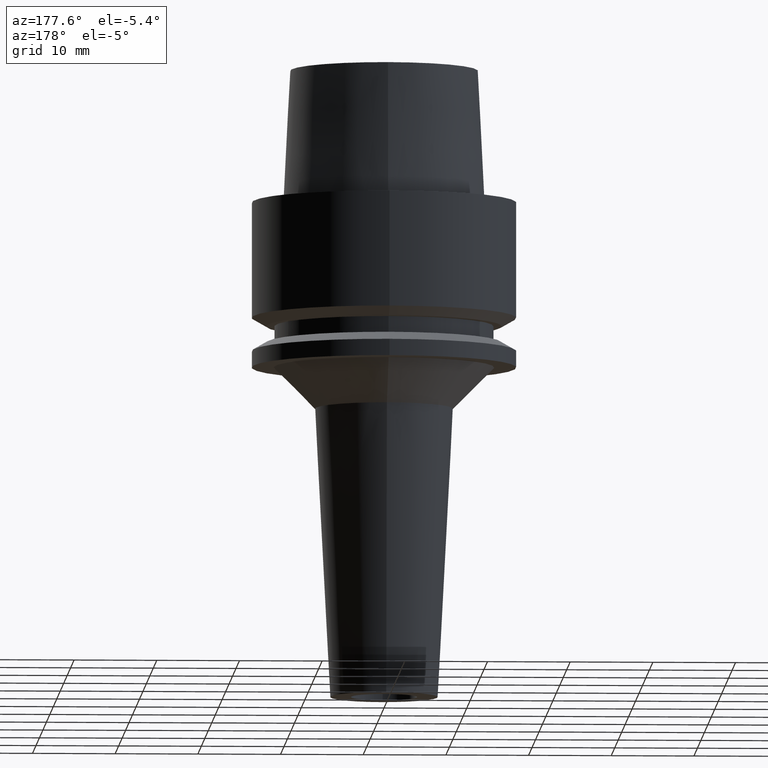
[diagram: clean part render]
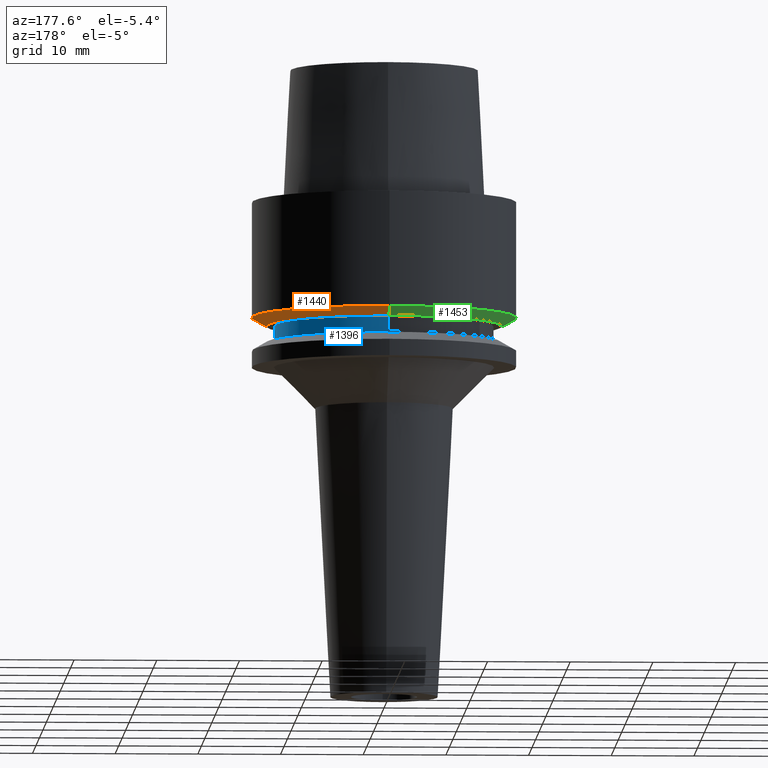
[diagram: same view with three faces highlighted in distinct colors, each labeled with its STEP entity id]
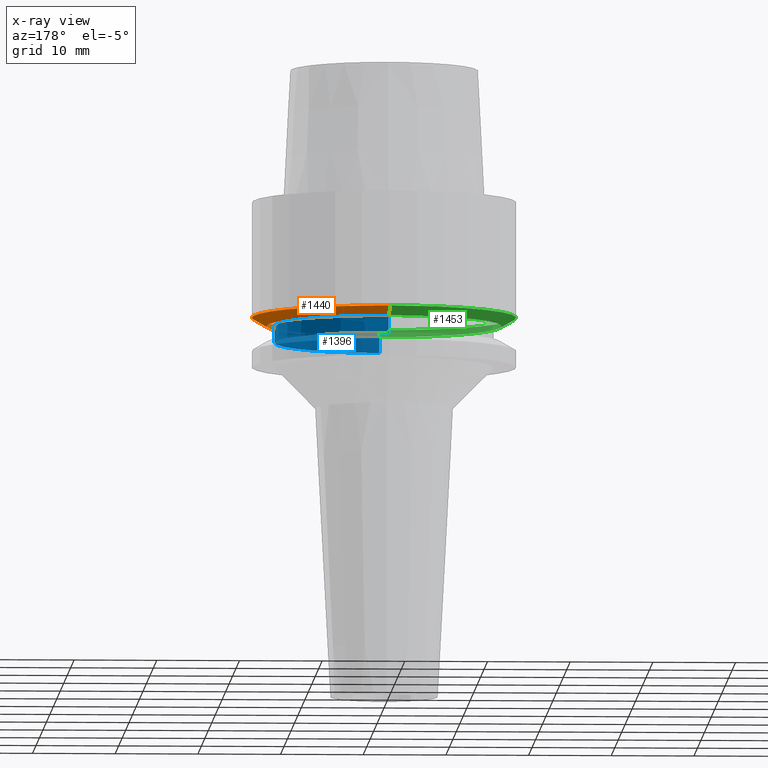
[diagram: x-ray of the same camera — body ghosted, the three highlighted faces saturated]
A machine part, auxiliary view with three faces highlighted in distinct colors.
The next image is the same camera in x-ray (body ghosted, the three faces saturated) — at least one of them is partly hidden behind the body in this view.
Their STEP definitions:

[orange] entity #1440 — the highlighted conical surface has half-angle 60 deg.
#612=CARTESIAN_POINT('',(0.E0,1.047199923065E-14,-1.5E1));
#613=DIRECTION('',(0.E0,0.E0,1.E0));
#614=DIRECTION('',(0.E0,-1.E0,0.E0));
#615=AXIS2_PLACEMENT_3D('',#612,#613,#614);
#644=DIRECTION('',(0.E0,-8.660254037848E-1,-4.999999999994E-1));
#645=VECTOR('',#644,2.041451884325E0);
#646=CARTESIAN_POINT('',(0.E0,1.6E1,-1.397927405784E1));
#647=LINE('',#646,#645);
#651=CARTESIAN_POINT('',(0.E0,1.047199923065E-14,-1.397927405784E1));
#652=DIRECTION('',(0.E0,0.E0,1.E0));
#653=DIRECTION('',(0.E0,-1.E0,0.E0));
#654=AXIS2_PLACEMENT_3D('',#651,#652,#653);
#667=DIRECTION('',(0.E0,8.660254037848E-1,-4.999999999994E-1));
#668=VECTOR('',#667,2.041451884325E0);
#669=CARTESIAN_POINT('',(0.E0,-1.6E1,-1.397927405784E1));
#670=LINE('',#669,#668);
#820=CARTESIAN_POINT('',(0.E0,-1.423205080757E1,-1.5E1));
#821=CARTESIAN_POINT('',(0.E0,1.423205080757E1,-1.5E1));
#822=VERTEX_POINT('',#820);
#823=VERTEX_POINT('',#821);
#824=CARTESIAN_POINT('',(0.E0,1.6E1,-1.397927405784E1));
#825=VERTEX_POINT('',#824);
#826=CARTESIAN_POINT('',(0.E0,-1.6E1,-1.397927405784E1));
#827=VERTEX_POINT('',#826);
#1426=CARTESIAN_POINT('',(0.E0,1.047199923065E-14,-1.448963702892E1));
#1427=DIRECTION('',(0.E0,0.E0,1.E0));
#1428=DIRECTION('',(0.E0,1.E0,0.E0));
#1429=AXIS2_PLACEMENT_3D('',#1426,#1427,#1428);
#1430=CONICAL_SURFACE('',#1429,1.511602540378E1,6.E1);
#1432=ORIENTED_EDGE('',*,*,#1431,.T.);
#1433=ORIENTED_EDGE('',*,*,#1415,.F.);
#1435=ORIENTED_EDGE('',*,*,#1434,.F.);
#1437=ORIENTED_EDGE('',*,*,#1436,.T.);
#1438=EDGE_LOOP('',(#1432,#1433,#1435,#1437));
#1439=FACE_OUTER_BOUND('',#1438,.F.);
#616=CIRCLE('',#615,1.423205080757E1);
#655=CIRCLE('',#654,1.6E1);
#1415=EDGE_CURVE('',#822,#823,#616,.T.);
#1431=EDGE_CURVE('',#825,#823,#647,.T.);
#1434=EDGE_CURVE('',#827,#822,#670,.T.);
#1436=EDGE_CURVE('',#827,#825,#655,.T.);
#1440=ADVANCED_FACE('',(#1439),#1430,.T.);

[blue] entity #1396 — the highlighted cylindrical surface (partial cylindrical patch) has radius 13.25 mm, axis along (0, 0, -1).
#582=CARTESIAN_POINT('',(0.E0,1.467126865379E-14,-1.7E1));
#583=DIRECTION('',(0.E0,0.E0,1.E0));
#584=DIRECTION('',(0.E0,-1.E0,0.E0));
#585=AXIS2_PLACEMENT_3D('',#582,#583,#584);
#598=DIRECTION('',(0.E0,0.E0,-1.E0));
#599=VECTOR('',#598,2.E0);
#600=CARTESIAN_POINT('',(0.E0,1.325E1,-1.5E1));
#601=LINE('',#600,#599);
#605=DIRECTION('',(0.E0,0.E0,-1.E0));
#606=VECTOR('',#605,2.E0);
#607=CARTESIAN_POINT('',(0.E0,-1.325E1,-1.5E1));
#608=LINE('',#607,#606);
#636=CARTESIAN_POINT('',(0.E0,1.467126865379E-14,-1.5E1));
#637=DIRECTION('',(0.E0,0.E0,-1.E0));
#638=DIRECTION('',(0.E0,1.E0,0.E0));
#639=AXIS2_PLACEMENT_3D('',#636,#637,#638);
#812=CARTESIAN_POINT('',(0.E0,-1.325E1,-1.7E1));
#813=CARTESIAN_POINT('',(0.E0,1.325E1,-1.7E1));
#814=VERTEX_POINT('',#812);
#815=VERTEX_POINT('',#813);
#816=CARTESIAN_POINT('',(0.E0,1.325E1,-1.5E1));
#817=VERTEX_POINT('',#816);
#818=CARTESIAN_POINT('',(0.E0,-1.325E1,-1.5E1));
#819=VERTEX_POINT('',#818);
#1382=CARTESIAN_POINT('',(0.E0,1.467126865379E-14,1.98E1));
#1383=DIRECTION('',(0.E0,0.E0,-1.E0));
#1384=DIRECTION('',(0.E0,-1.E0,0.E0));
#1385=AXIS2_PLACEMENT_3D('',#1382,#1383,#1384);
#1386=CYLINDRICAL_SURFACE('',#1385,1.325E1);
#1388=ORIENTED_EDGE('',*,*,#1387,.T.);
#1389=ORIENTED_EDGE('',*,*,#1375,.F.);
#1391=ORIENTED_EDGE('',*,*,#1390,.F.);
#1393=ORIENTED_EDGE('',*,*,#1392,.F.);
#1394=EDGE_LOOP('',(#1388,#1389,#1391,#1393));
#1395=FACE_OUTER_BOUND('',#1394,.F.);
#586=CIRCLE('',#585,1.325E1);
#640=CIRCLE('',#639,1.325E1);
#1375=EDGE_CURVE('',#814,#815,#586,.T.);
#1387=EDGE_CURVE('',#817,#815,#601,.T.);
#1390=EDGE_CURVE('',#819,#814,#608,.T.);
#1392=EDGE_CURVE('',#817,#819,#640,.T.);
#1396=ADVANCED_FACE('',(#1395),#1386,.T.);

[green] entity #1453 — the highlighted conical surface has half-angle 60 deg.
#620=CARTESIAN_POINT('',(0.E0,1.047199923065E-14,-1.5E1));
#621=DIRECTION('',(0.E0,0.E0,1.E0));
#622=DIRECTION('',(0.E0,1.E0,0.E0));
#623=AXIS2_PLACEMENT_3D('',#620,#621,#622);
#644=DIRECTION('',(0.E0,-8.660254037848E-1,-4.999999999994E-1));
#645=VECTOR('',#644,2.041451884325E0);
#646=CARTESIAN_POINT('',(0.E0,1.6E1,-1.397927405784E1));
#647=LINE('',#646,#645);
#659=CARTESIAN_POINT('',(0.E0,1.047199923065E-14,-1.397927405784E1));
#660=DIRECTION('',(0.E0,0.E0,1.E0));
#661=DIRECTION('',(0.E0,1.E0,0.E0));
#662=AXIS2_PLACEMENT_3D('',#659,#660,#661);
#667=DIRECTION('',(0.E0,8.660254037848E-1,-4.999999999994E-1));
#668=VECTOR('',#667,2.041451884325E0);
#669=CARTESIAN_POINT('',(0.E0,-1.6E1,-1.397927405784E1));
#670=LINE('',#669,#668);
#820=CARTESIAN_POINT('',(0.E0,-1.423205080757E1,-1.5E1));
#821=CARTESIAN_POINT('',(0.E0,1.423205080757E1,-1.5E1));
#822=VERTEX_POINT('',#820);
#823=VERTEX_POINT('',#821);
#824=CARTESIAN_POINT('',(0.E0,1.6E1,-1.397927405784E1));
#825=VERTEX_POINT('',#824);
#826=CARTESIAN_POINT('',(0.E0,-1.6E1,-1.397927405784E1));
#827=VERTEX_POINT('',#826);
#1441=CARTESIAN_POINT('',(0.E0,1.047199923065E-14,-1.448963702892E1));
#1442=DIRECTION('',(0.E0,0.E0,1.E0));
#1443=DIRECTION('',(0.E0,1.E0,0.E0));
#1444=AXIS2_PLACEMENT_3D('',#1441,#1442,#1443);
#1445=CONICAL_SURFACE('',#1444,1.511602540378E1,6.E1);
#1446=ORIENTED_EDGE('',*,*,#1431,.F.);
#1448=ORIENTED_EDGE('',*,*,#1447,.T.);
#1449=ORIENTED_EDGE('',*,*,#1434,.T.);
#1450=ORIENTED_EDGE('',*,*,#1417,.F.);
#1451=EDGE_LOOP('',(#1446,#1448,#1449,#1450));
#1452=FACE_OUTER_BOUND('',#1451,.F.);
#624=CIRCLE('',#623,1.423205080757E1);
#663=CIRCLE('',#662,1.6E1);
#1417=EDGE_CURVE('',#823,#822,#624,.T.);
#1431=EDGE_CURVE('',#825,#823,#647,.T.);
#1434=EDGE_CURVE('',#827,#822,#670,.T.);
#1447=EDGE_CURVE('',#825,#827,#663,.T.);
#1453=ADVANCED_FACE('',(#1452),#1445,.T.);